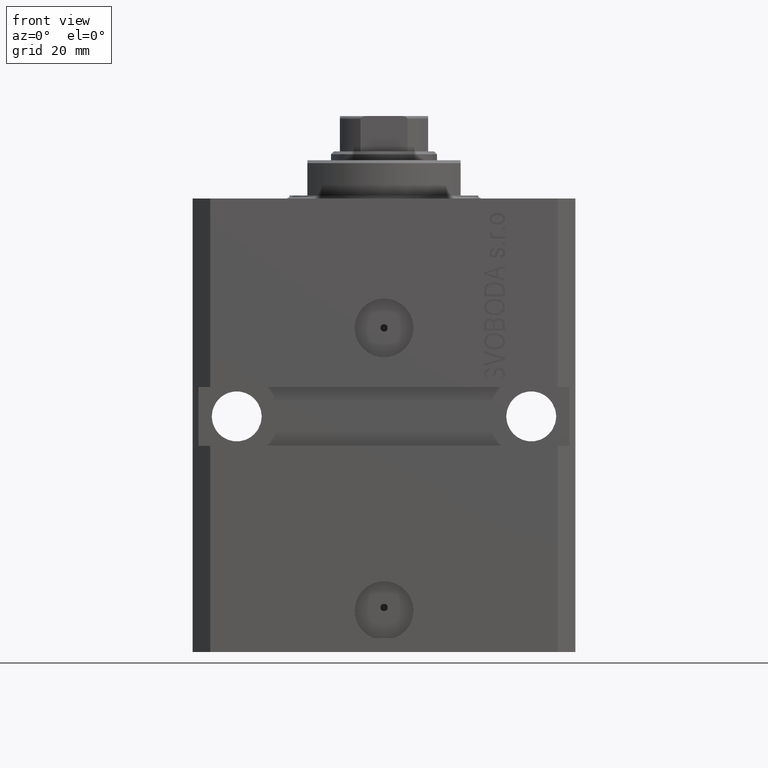
[diagram: clean part render]
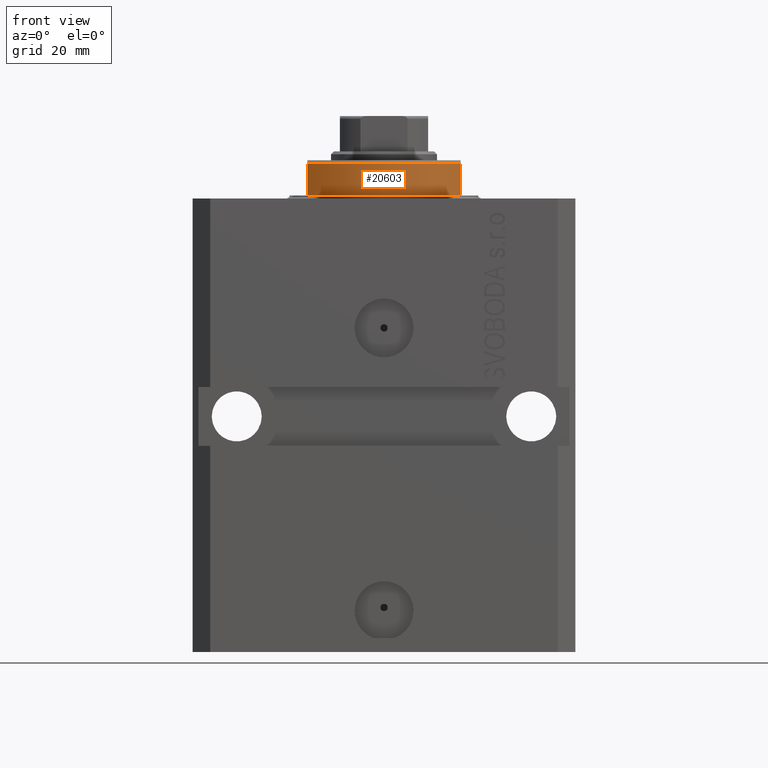
[diagram: same view with one face highlighted and labeled with its STEP entity id]
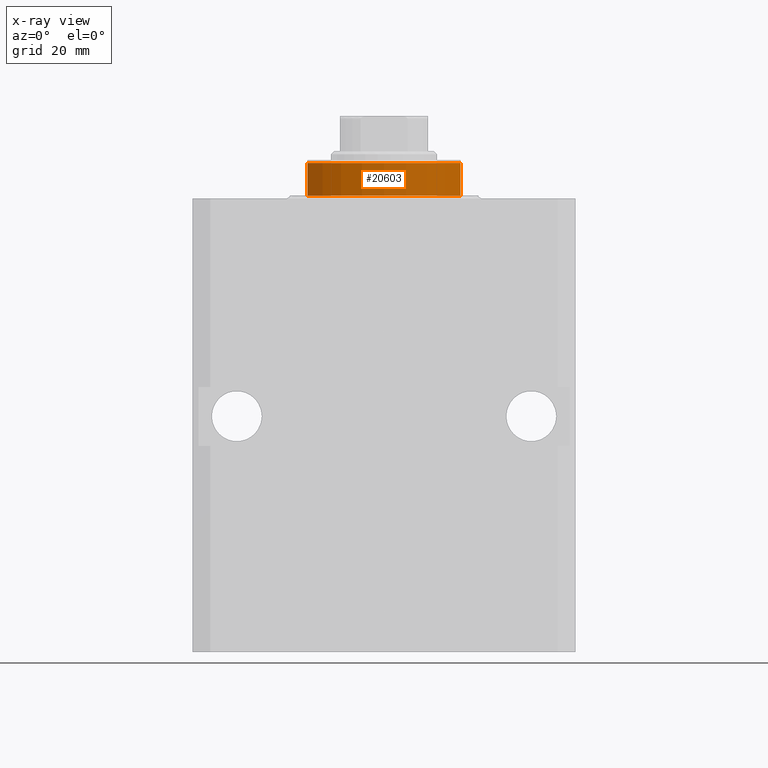
[diagram: x-ray of the same camera — body ghosted, the highlighted face saturated]
A machine part, front view. The second image highlights one B-rep face of the part: STEP entity #20603.
The next image is the same camera in x-ray: the body ghosted, the highlighted face saturated — about 0% of this face is hidden behind the body in this view.
In plain terms, the highlighted cylindrical surface (partial cylindrical patch) has radius 16 mm, axis along (0, 0, -1).
Its self-contained STEP definition (entity closure, byte-faithful):
#1125 = LINE ( 'NONE', #19937, #13841 ) ;
#1893 = ORIENTED_EDGE ( 'NONE', *, *, #32904, .T. ) ;
#2364 = VERTEX_POINT ( 'NONE', #39237 ) ;
#2811 = EDGE_CURVE ( 'NONE', #29854, #38443, #1125, .T. ) ;
#3967 = LINE ( 'NONE', #22056, #33548 ) ;
#4484 = FACE_OUTER_BOUND ( 'NONE', #34793, .T. ) ;
#7215 = CARTESIAN_POINT ( 'NONE',  ( -13.00000000000000000, -9.327379053088815652, -0.4999999999999995559 ) ) ;
#7350 = ORIENTED_EDGE ( 'NONE', *, *, #2811, .T. ) ;
#7439 = CARTESIAN_POINT ( 'NONE',  ( 13.00000000000000000, -9.327379053088815652, -6.000000000000023981 ) ) ;
#7452 = ORIENTED_EDGE ( 'NONE', *, *, #20828, .F. ) ;
#7668 = AXIS2_PLACEMENT_3D ( 'NONE', #35445, #35677, #16614 ) ;
#7745 = AXIS2_PLACEMENT_3D ( 'NONE', #17204, #20780, #42057 ) ;
#12604 = CIRCLE ( 'NONE', #21734, 16.00000000000000000 ) ;
#13739 = CYLINDRICAL_SURFACE ( 'NONE', #7668, 16.00000000000000000 ) ;
#13841 = VECTOR ( 'NONE', #41901, 1000.000000000000000 ) ;
#15235 = ORIENTED_EDGE ( 'NONE', *, *, #22334, .T. ) ;
#16516 = CARTESIAN_POINT ( 'NONE',  ( -13.00000000000000000, -9.327379053088815652, -6.000000000000023981 ) ) ;
#16614 = DIRECTION ( 'NONE',  ( 1.000000000000000000, 0.000000000000000000, 0.000000000000000000 ) ) ;
#17204 = CARTESIAN_POINT ( 'NONE',  ( 0.000000000000000000, 0.000000000000000000, -0.4999999999999995559 ) ) ;
#19937 = CARTESIAN_POINT ( 'NONE',  ( -13.00000000000000000, -9.327379053088813876, -6.500000000000000000 ) ) ;
#20098 = CARTESIAN_POINT ( 'NONE',  ( 0.000000000000000000, 0.000000000000000000, -6.000000000000023981 ) ) ;
#20603 = ADVANCED_FACE ( 'NONE', ( #4484 ), #13739, .T. ) ;
#20780 = DIRECTION ( 'NONE',  ( -0.000000000000000000, -0.000000000000000000, -1.000000000000000000 ) ) ;
#20828 = EDGE_CURVE ( 'NONE', #2364, #38571, #3967, .T. ) ;
#21734 = AXIS2_PLACEMENT_3D ( 'NONE', #20098, #30349, #44919 ) ;
#22056 = CARTESIAN_POINT ( 'NONE',  ( 13.00000000000000000, -9.327379053088813876, -6.500000000000000000 ) ) ;
#22334 = EDGE_CURVE ( 'NONE', #2364, #29854, #37433, .T. ) ;
#29854 = VERTEX_POINT ( 'NONE', #7215 ) ;
#30349 = DIRECTION ( 'NONE',  ( 0.000000000000000000, 0.000000000000000000, 1.000000000000000000 ) ) ;
#32904 = EDGE_CURVE ( 'NONE', #38443, #38571, #12604, .T. ) ;
#33548 = VECTOR ( 'NONE', #39742, 1000.000000000000000 ) ;
#34793 = EDGE_LOOP ( 'NONE', ( #7452, #15235, #7350, #1893 ) ) ;
#35445 = CARTESIAN_POINT ( 'NONE',  ( 0.000000000000000000, 0.000000000000000000, -6.500000000000000000 ) ) ;
#35677 = DIRECTION ( 'NONE',  ( -0.000000000000000000, -0.000000000000000000, 1.000000000000000000 ) ) ;
#37433 = CIRCLE ( 'NONE', #7745, 16.00000000000000000 ) ;
#38443 = VERTEX_POINT ( 'NONE', #16516 ) ;
#38571 = VERTEX_POINT ( 'NONE', #7439 ) ;
#39237 = CARTESIAN_POINT ( 'NONE',  ( 13.00000000000000000, -9.327379053088815652, -0.4999999999999995559 ) ) ;
#39742 = DIRECTION ( 'NONE',  ( 0.000000000000000000, 0.000000000000000000, -1.000000000000000000 ) ) ;
#41901 = DIRECTION ( 'NONE',  ( 0.000000000000000000, 0.000000000000000000, -1.000000000000000000 ) ) ;
#42057 = DIRECTION ( 'NONE',  ( 1.000000000000000000, 0.000000000000000000, 0.000000000000000000 ) ) ;
#44919 = DIRECTION ( 'NONE',  ( -1.000000000000000000, 0.000000000000000000, 0.000000000000000000 ) ) ;